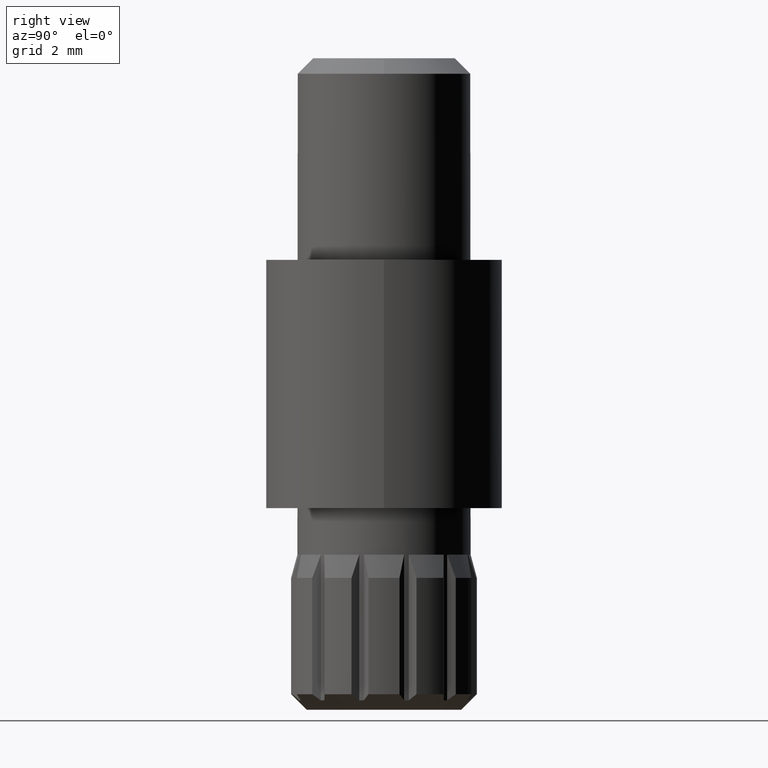
[diagram: clean part render]
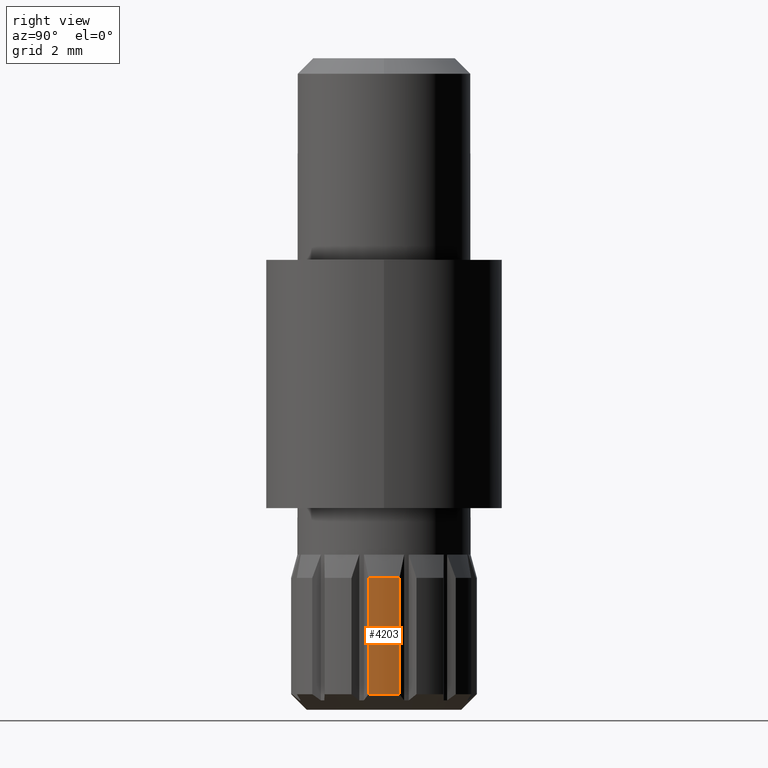
[diagram: same view with one face highlighted and labeled with its STEP entity id]
A machine part, right view. The second image highlights one B-rep face of the part: STEP entity #4203.
In plain terms, the highlighted cylindrical surface (partial cylindrical patch) has radius 3 mm, axis along (0, 0, -1).
Its self-contained STEP definition (entity closure, byte-faithful):
#687 = CIRCLE ( 'NONE', #6882, 3.000000000000000888 ) ;
#743 = EDGE_CURVE ( 'NONE', #9344, #5528, #5308, .T. ) ;
#750 = VERTEX_POINT ( 'NONE', #11295 ) ;
#1203 = ORIENTED_EDGE ( 'NONE', *, *, #8871, .F. ) ;
#1211 = AXIS2_PLACEMENT_3D ( 'NONE', #6014, #9743, #3974 ) ;
#1274 = EDGE_CURVE ( 'NONE', #750, #5528, #10349, .T. ) ;
#1294 = DIRECTION ( 'NONE',  ( -1.000000000000000000, 0.000000000000000000, 0.000000000000000000 ) ) ;
#1842 = DIRECTION ( 'NONE',  ( -1.000000000000000000, 0.000000000000000000, 0.000000000000000000 ) ) ;
#1898 = FACE_OUTER_BOUND ( 'NONE', #2372, .T. ) ;
#2208 = CYLINDRICAL_SURFACE ( 'NONE', #1211, 3.000000000000000444 ) ;
#2372 = EDGE_LOOP ( 'NONE', ( #5117, #8908, #12528, #1203 ) ) ;
#2806 = CARTESIAN_POINT ( 'NONE',  ( 0.000000000000000000, 0.000000000000000000, 0.4999999999999998890 ) ) ;
#3974 = DIRECTION ( 'NONE',  ( -1.000000000000000000, 0.000000000000000000, 0.000000000000000000 ) ) ;
#4203 = ADVANCED_FACE ( 'NONE', ( #1898 ), #2208, .T. ) ;
#4256 = CARTESIAN_POINT ( 'NONE',  ( 0.000000000000000000, 0.000000000000000000, 4.250000000000000000 ) ) ;
#4398 = DIRECTION ( 'NONE',  ( 0.000000000000000000, 0.000000000000000000, -1.000000000000000000 ) ) ;
#4830 = EDGE_CURVE ( 'NONE', #4840, #9344, #687, .T. ) ;
#4840 = VERTEX_POINT ( 'NONE', #11063 ) ;
#5117 = ORIENTED_EDGE ( 'NONE', *, *, #4830, .T. ) ;
#5215 = CARTESIAN_POINT ( 'NONE',  ( 2.958039891549810285, 0.4999999999999898415, 5.000000000000000000 ) ) ;
#5308 = LINE ( 'NONE', #8362, #11134 ) ;
#5510 = AXIS2_PLACEMENT_3D ( 'NONE', #2806, #11484, #1842 ) ;
#5528 = VERTEX_POINT ( 'NONE', #12370 ) ;
#6014 = CARTESIAN_POINT ( 'NONE',  ( 0.000000000000000000, 0.000000000000000000, 5.000000000000000000 ) ) ;
#6882 = AXIS2_PLACEMENT_3D ( 'NONE', #4256, #10087, #1294 ) ;
#6991 = CARTESIAN_POINT ( 'NONE',  ( 2.958039891549807177, -0.5000000000000102141, 4.250000000000000000 ) ) ;
#7917 = VECTOR ( 'NONE', #12114, 1000.000000000000000 ) ;
#8362 = CARTESIAN_POINT ( 'NONE',  ( 2.958039891549806732, -0.5000000000000102141, 5.000000000000000000 ) ) ;
#8871 = EDGE_CURVE ( 'NONE', #4840, #750, #10543, .T. ) ;
#8908 = ORIENTED_EDGE ( 'NONE', *, *, #743, .T. ) ;
#9344 = VERTEX_POINT ( 'NONE', #6991 ) ;
#9743 = DIRECTION ( 'NONE',  ( 0.000000000000000000, 0.000000000000000000, -1.000000000000000000 ) ) ;
#10087 = DIRECTION ( 'NONE',  ( -0.000000000000000000, -0.000000000000000000, -1.000000000000000000 ) ) ;
#10349 = CIRCLE ( 'NONE', #5510, 3.000000000000000000 ) ;
#10543 = LINE ( 'NONE', #5215, #7917 ) ;
#11063 = CARTESIAN_POINT ( 'NONE',  ( 2.958039891549810729, 0.4999999999999889533, 4.250000000000000000 ) ) ;
#11134 = VECTOR ( 'NONE', #4398, 1000.000000000000000 ) ;
#11295 = CARTESIAN_POINT ( 'NONE',  ( 2.958039891549809841, 0.4999999999999893974, 0.4999999999999998890 ) ) ;
#11484 = DIRECTION ( 'NONE',  ( -0.000000000000000000, -0.000000000000000000, -1.000000000000000000 ) ) ;
#12114 = DIRECTION ( 'NONE',  ( 0.000000000000000000, 0.000000000000000000, -1.000000000000000000 ) ) ;
#12370 = CARTESIAN_POINT ( 'NONE',  ( 2.958039891549807177, -0.5000000000000102141, 0.4999999999999998890 ) ) ;
#12528 = ORIENTED_EDGE ( 'NONE', *, *, #1274, .F. ) ;